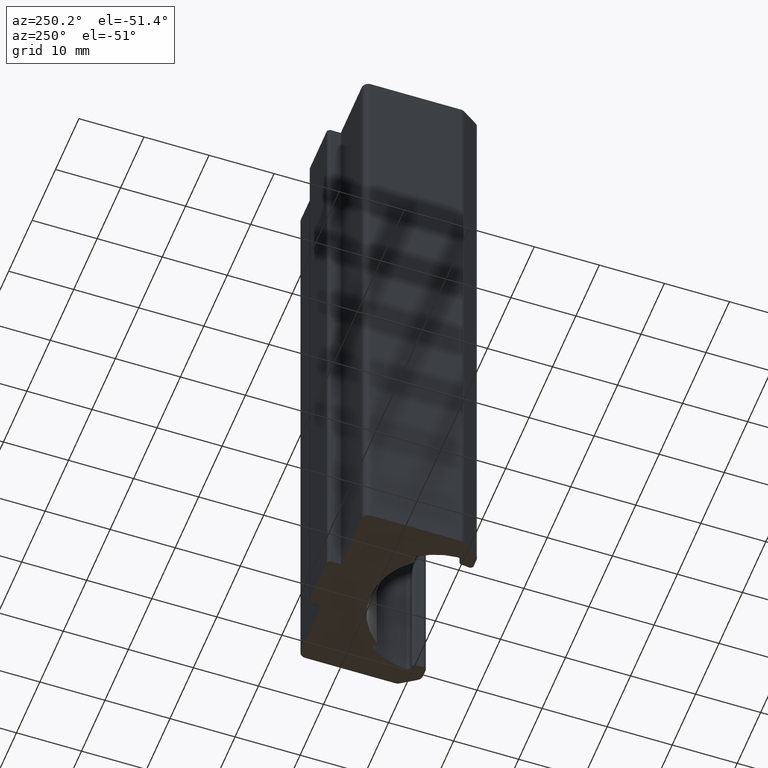
[diagram: clean part render]
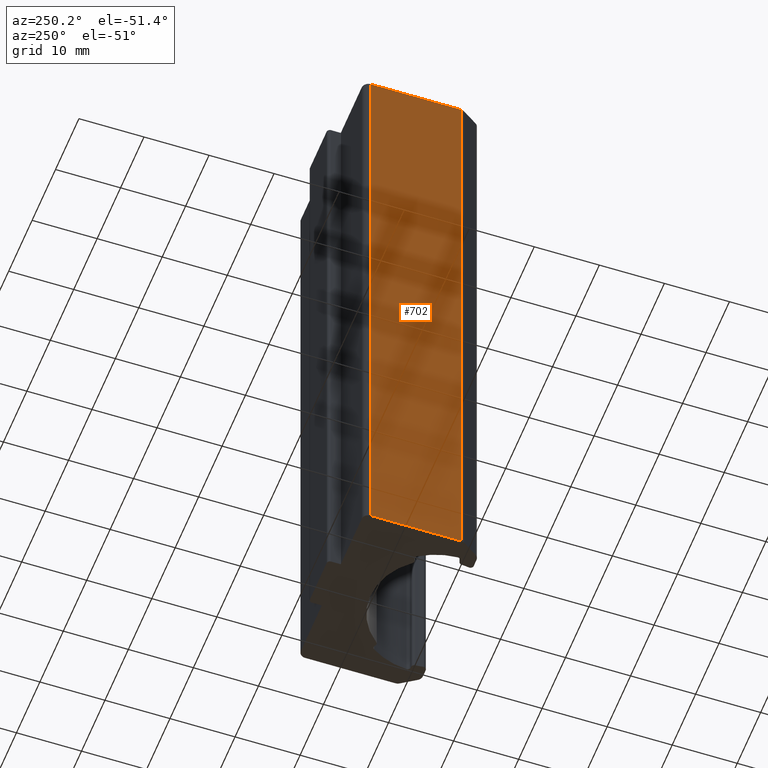
[diagram: same view with one face highlighted and labeled with its STEP entity id]
A machine part, auxiliary view. The second image highlights one B-rep face of the part: STEP entity #702.
In plain terms, the highlighted planar face has unit normal (-1, 0, 0).
Its self-contained STEP definition (entity closure, byte-faithful):
#17=PLANE('',#760);
#39=FACE_OUTER_BOUND('',#77,.T.);
#77=EDGE_LOOP('',(#494,#495,#496,#497));
#119=LINE('',#1124,#177);
#120=LINE('',#1127,#178);
#121=LINE('',#1129,#179);
#122=LINE('',#1130,#180);
#177=VECTOR('',#894,100.);
#178=VECTOR('',#897,13.8972243622125);
#179=VECTOR('',#898,13.8972243622125);
#180=VECTOR('',#899,100.);
#292=VERTEX_POINT('',#1120);
#293=VERTEX_POINT('',#1122);
#294=VERTEX_POINT('',#1126);
#295=VERTEX_POINT('',#1128);
#375=EDGE_CURVE('',#292,#293,#119,.T.);
#376=EDGE_CURVE('',#292,#294,#120,.T.);
#377=EDGE_CURVE('',#295,#293,#121,.T.);
#378=EDGE_CURVE('',#294,#295,#122,.T.);
#494=ORIENTED_EDGE('',*,*,#376,.F.);
#495=ORIENTED_EDGE('',*,*,#375,.T.);
#496=ORIENTED_EDGE('',*,*,#377,.F.);
#497=ORIENTED_EDGE('',*,*,#378,.F.);
#702=ADVANCED_FACE('',(#39),#17,.T.);
#760=AXIS2_PLACEMENT_3D('',#1125,#895,#896);
#894=DIRECTION('',(0.,0.,1.));
#895=DIRECTION('center_axis',(-1.,1.76392952612739E-13,0.));
#896=DIRECTION('ref_axis',(-1.76392234152445E-13,-1.,0.));
#897=DIRECTION('',(1.76392952612739E-13,1.,0.));
#898=DIRECTION('',(-1.76392952612739E-13,-1.,0.));
#899=DIRECTION('',(0.,0.,1.));
#1120=CARTESIAN_POINT('',(-13.9999991268134,1.10277587148823,0.));
#1122=CARTESIAN_POINT('',(-13.9999991268134,1.10277587148823,100.));
#1124=CARTESIAN_POINT('',(-13.9999991268134,1.10277587148823,0.));
#1125=CARTESIAN_POINT('Origin',(-13.999999126811,15.0000002337007,0.));
#1126=CARTESIAN_POINT('',(-13.999999126811,15.0000002337007,0.));
#1127=CARTESIAN_POINT('',(-13.9999991268134,1.10277587148823,0.));
#1128=CARTESIAN_POINT('',(-13.999999126811,15.0000002337007,100.));
#1129=CARTESIAN_POINT('',(-13.9999991268134,1.10277587148823,100.));
#1130=CARTESIAN_POINT('',(-13.999999126811,15.0000002337007,0.));